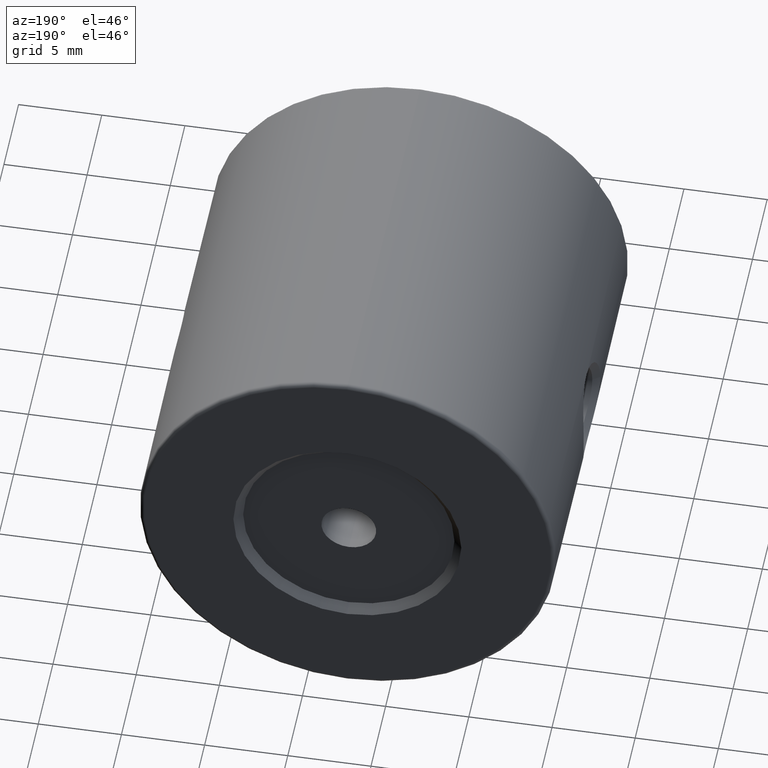
[diagram: clean part render]
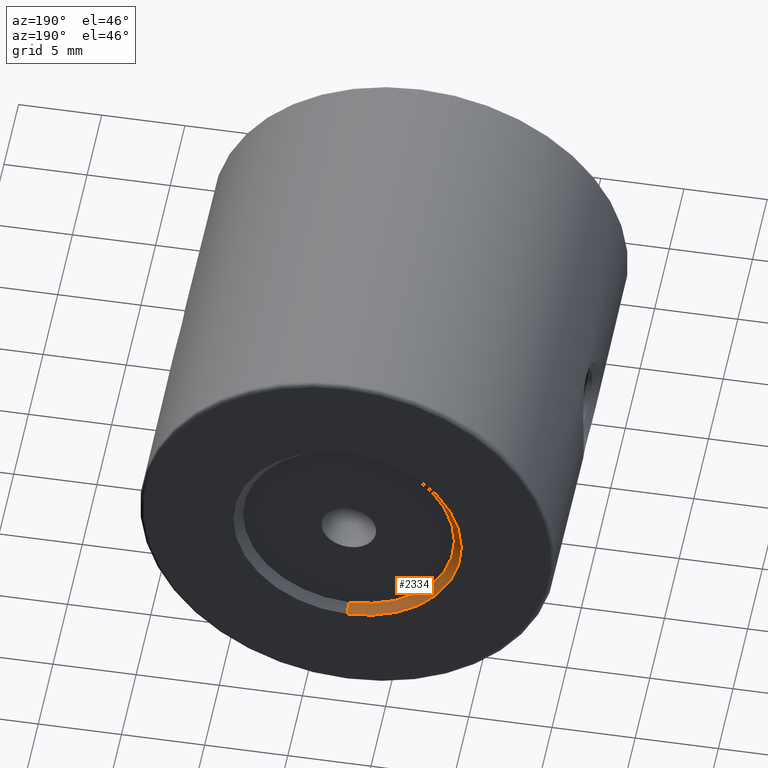
[diagram: same view with one face highlighted and labeled with its STEP entity id]
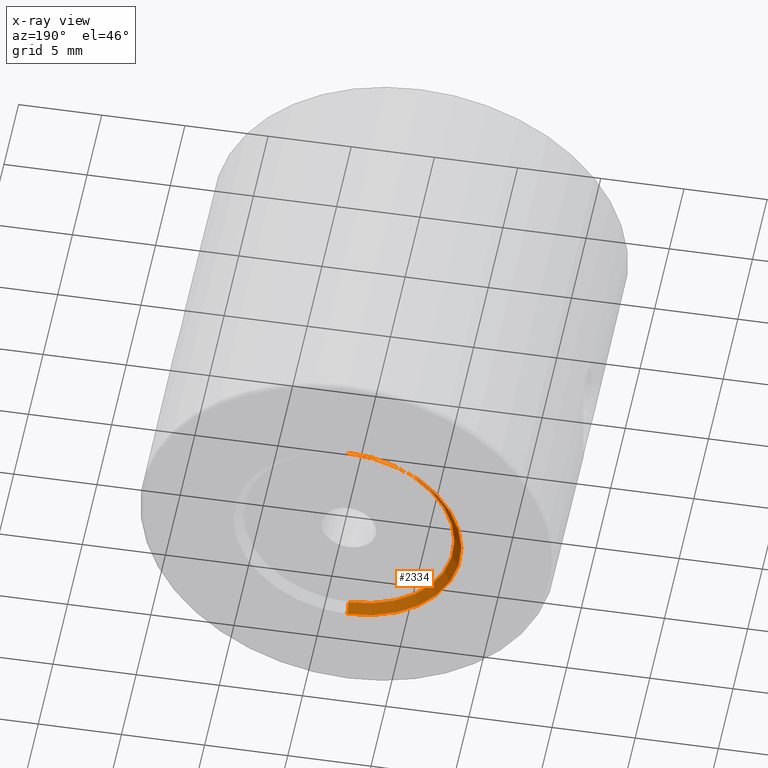
[diagram: x-ray of the same camera — body ghosted, the highlighted face saturated]
A machine part, auxiliary view. The second image highlights one B-rep face of the part: STEP entity #2334.
The next image is the same camera in x-ray: the body ghosted, the highlighted face saturated — about 0% of this face is hidden behind the body in this view.
In plain terms, the highlighted conical surface has half-angle 45 deg.
Its self-contained STEP definition (entity closure, byte-faithful):
#16 = EDGE_CURVE ( 'NONE', #2173, #2461, #2153, .T. ) ;
#23 = CARTESIAN_POINT ( 'NONE',  ( -22.50520183104453409, 13.39825218476938851, 43.64999999999999858 ) ) ;
#39 = EDGE_LOOP ( 'NONE', ( #520, #2116, #1942, #1238 ) ) ;
#71 = DIRECTION ( 'NONE',  ( 0.0000000000000000000, 1.000000000000000000, 0.0000000000000000000 ) ) ;
#73 = EDGE_CURVE ( 'NONE', #2461, #3227, #2717, .T. ) ;
#102 = CARTESIAN_POINT ( 'NONE',  ( -22.50520183104453409, 13.39825218476938851, 43.64999999999999858 ) ) ;
#139 = FACE_OUTER_BOUND ( 'NONE', #39, .T. ) ;
#224 = EDGE_CURVE ( 'NONE', #1021, #2173, #1237, .T. ) ;
#271 = CARTESIAN_POINT ( 'NONE',  ( -22.50520183104453409, 13.39825218476938851, 56.35000000000000142 ) ) ;
#323 = CONICAL_SURFACE ( 'NONE', #1969, 6.350000000000001421, 0.7853981633974543852 ) ;
#397 = DIRECTION ( 'NONE',  ( 0.0000000000000000000, 0.0000000000000000000, 1.000000000000000000 ) ) ;
#520 = ORIENTED_EDGE ( 'NONE', *, *, #224, .F. ) ;
#573 = CARTESIAN_POINT ( 'NONE',  ( -22.50520183104453409, 13.39825218476938851, 56.35000000000000142 ) ) ;
#825 = CARTESIAN_POINT ( 'NONE',  ( -22.50520183104453409, 13.89825218476938851, 50.00000000000000000 ) ) ;
#856 = CARTESIAN_POINT ( 'NONE',  ( -22.50520183104453409, 13.89825218476938851, 43.14999999999999147 ) ) ;
#1021 = VERTEX_POINT ( 'NONE', #102 ) ;
#1159 = DIRECTION ( 'NONE',  ( 0.0000000000000000000, 0.0000000000000000000, 1.000000000000000000 ) ) ;
#1176 = DIRECTION ( 'NONE',  ( 0.0000000000000000000, 0.0000000000000000000, 1.000000000000000000 ) ) ;
#1237 = CIRCLE ( 'NONE', #3337, 6.350000000000001421 ) ;
#1238 = ORIENTED_EDGE ( 'NONE', *, *, #16, .F. ) ;
#1428 = CARTESIAN_POINT ( 'NONE',  ( -22.50520183104453409, 13.39825218476938851, 50.00000000000000000 ) ) ;
#1458 = EDGE_CURVE ( 'NONE', #1021, #3227, #1614, .T. ) ;
#1470 = AXIS2_PLACEMENT_3D ( 'NONE', #825, #2261, #397 ) ;
#1580 = VECTOR ( 'NONE', #2394, 1000.000000000000114 ) ;
#1614 = LINE ( 'NONE', #23, #1580 ) ;
#1942 = ORIENTED_EDGE ( 'NONE', *, *, #73, .F. ) ;
#1969 = AXIS2_PLACEMENT_3D ( 'NONE', #2040, #2845, #1159 ) ;
#2025 = VECTOR ( 'NONE', #3242, 1000.000000000000114 ) ;
#2040 = CARTESIAN_POINT ( 'NONE',  ( -22.50520183104453409, 13.39825218476938851, 50.00000000000000000 ) ) ;
#2116 = ORIENTED_EDGE ( 'NONE', *, *, #1458, .T. ) ;
#2153 = LINE ( 'NONE', #271, #2025 ) ;
#2173 = VERTEX_POINT ( 'NONE', #573 ) ;
#2261 = DIRECTION ( 'NONE',  ( -0.0000000000000000000, -1.000000000000000000, -0.0000000000000000000 ) ) ;
#2334 = ADVANCED_FACE ( 'NONE', ( #139 ), #323, .F. ) ;
#2394 = DIRECTION ( 'NONE',  ( 8.659560562354987092E-17, 0.7071067811865431318, -0.7071067811865517916 ) ) ;
#2461 = VERTEX_POINT ( 'NONE', #3393 ) ;
#2717 = CIRCLE ( 'NONE', #1470, 6.850000000000008527 ) ;
#2845 = DIRECTION ( 'NONE',  ( 0.0000000000000000000, 1.000000000000000000, 0.0000000000000000000 ) ) ;
#3227 = VERTEX_POINT ( 'NONE', #856 ) ;
#3242 = DIRECTION ( 'NONE',  ( 0.0000000000000000000, 0.7071067811865431318, 0.7071067811865517916 ) ) ;
#3337 = AXIS2_PLACEMENT_3D ( 'NONE', #1428, #71, #1176 ) ;
#3393 = CARTESIAN_POINT ( 'NONE',  ( -22.50520183104453409, 13.89825218476938851, 56.85000000000000853 ) ) ;